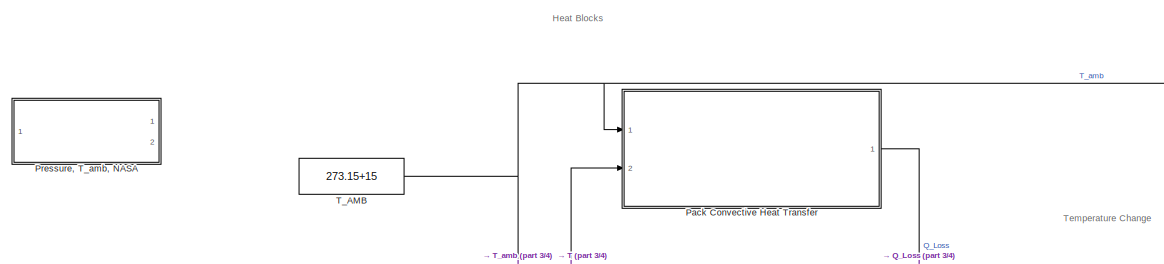
[diagram: root canvas - part 1/4, top center region]
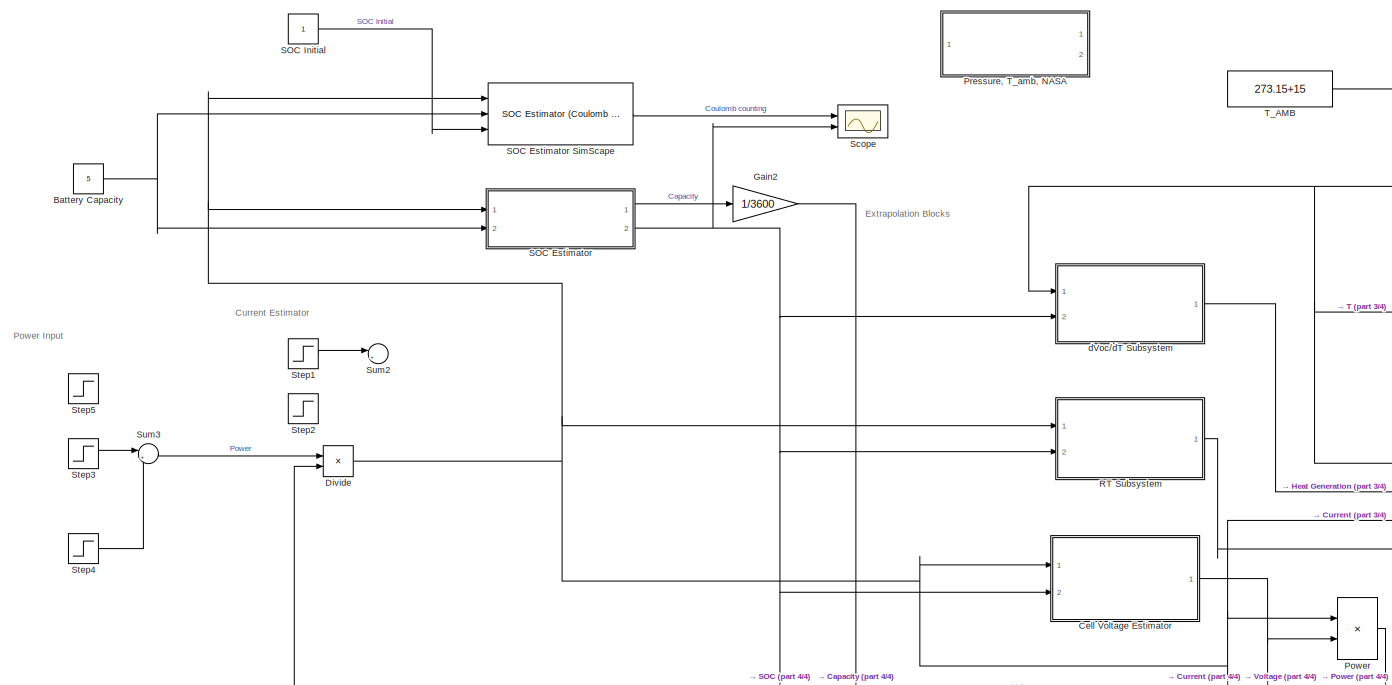
[diagram: root canvas - part 2/4, middle left region]
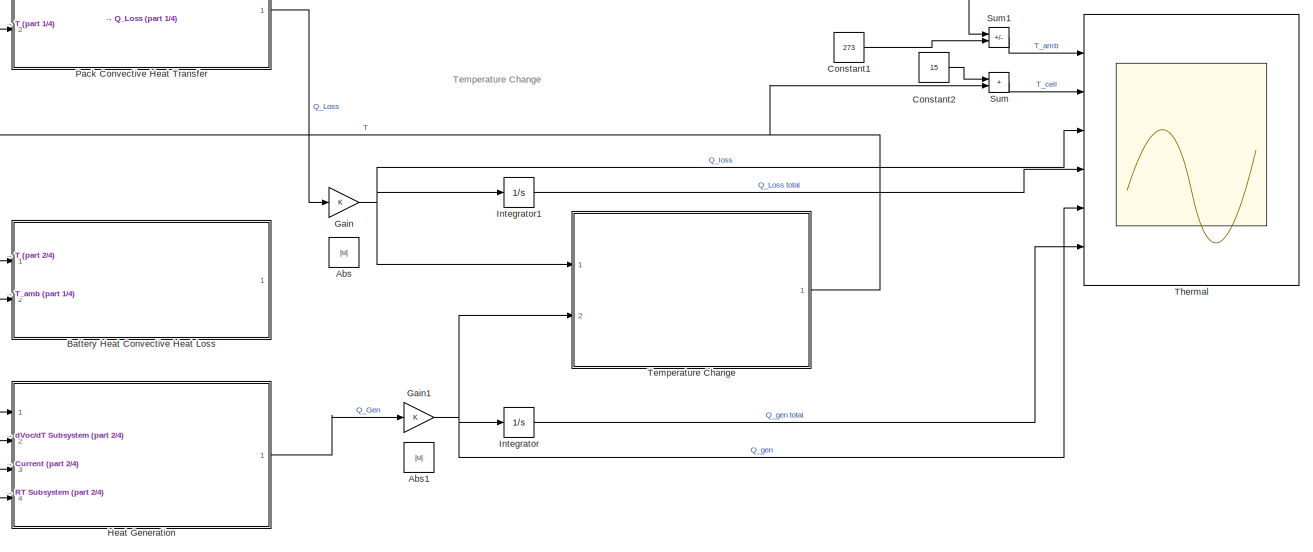
[diagram: root canvas - part 3/4, middle right region]
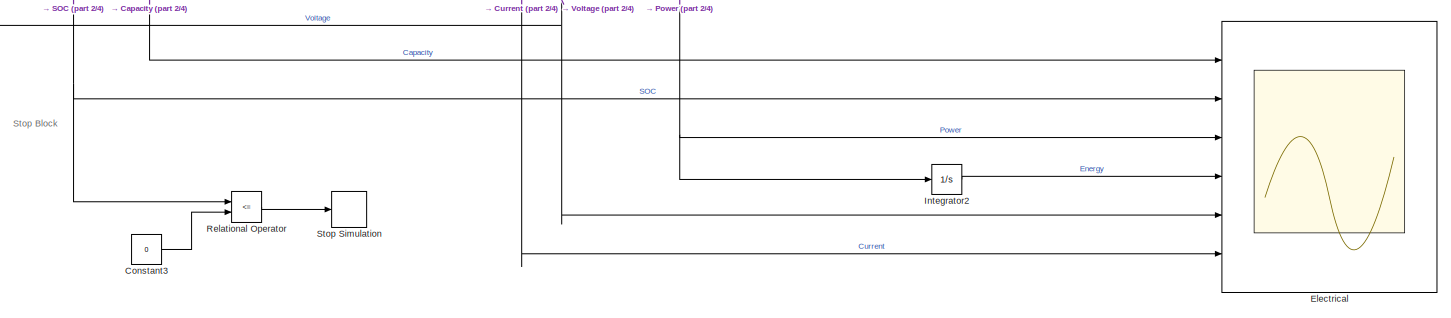
[diagram: root canvas - part 4/4, bottom center region]
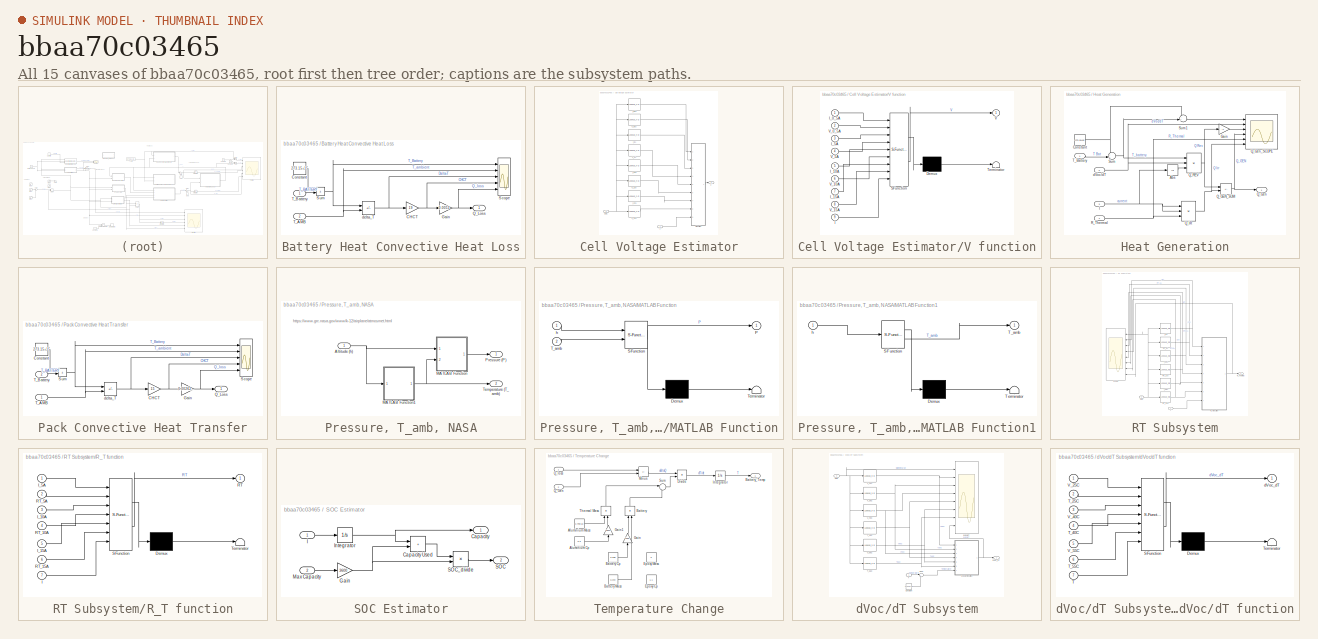
[diagram: thumbnail index - all 15 canvases of the model, root first then tree order]
MODEL slx_bbaa70c03465
KIND model
CONFIG AbsTol = auto
CONFIG EnableMultiTasking = off
CONFIG FixedStep = auto
CONFIG MaxStep = 0.03
CONFIG MinStep = auto
CONFIG RelTol = 1e-6
CONFIG SampleTimeConstraint = Unconstrained
CONFIG Solver = ode23t
CONFIG SolverName = ode23t
CONFIG StartTime = 0.0
CONFIG StopTime = 6*3600
WORKSPACE source: mxarray member
WORKSPACE CHGTime55C = [12335 12235.3030303 12110.6060606 11985.9090909 11861.2121212 11737.2727273 11626.8181818 11502.1212121 11377.4242424 11252.7272727 11128.030303 11003.3333333 ... (100 elements, 100x1)]
WORKSPACE CHG_time25C = [14633.3333333 14511.9191919 14363.8383838 14215.7575758 14084.8484848 13949.5959596 13801.5151515 13653.4343434 13505.3535354 13357.2727273 13209.1919192 13061.1111111 ... (100 elements, 100x1)]
WORKSPACE CHG_time40C = [16740 16581.010101 16412.020202 16243.030303 16084.040404 15915.0505051 15746.0606061 15577.0707071 15408.0808081 15239.0909091 15070.1010101 14901.1111111 ... (100 elements, 100x1)]
WORKSPACE Capacity05A = [-5.0715 -5.02064646465 -4.96968686869 -4.91803030303 -4.86737373737 -4.81571717172 -4.76506060606 -4.7134040404 -4.6625 -4.61109090909 -4.55946969697 -4.50877777778 ... (100 elements, 100x1)]
WORKSPACE Capacity10A = [-4.9645 -4.91586363636 -4.86572727273 -4.81559090909 -4.76545454545 -4.71531818182 -4.66518181818 -4.61501515152 -4.5648030303 -4.51477272727 -4.46463636364 -4.4145 ... (100 elements, 100x1)]
WORKSPACE Capacity15A = [-4.9185 -4.87028282828 -4.82056565657 -4.77084848485 -4.72113131313 -4.67141414141 -4.6216969697 -4.57197979798 -4.52226262626 -4.47254545455 -4.42282828283 -4.37316666667 ... (100 elements, 100x1)]
WORKSPACE Capacity5A = [-4.989 -4.93917171717 -4.88857575758 -4.83801515152 -4.78815151515 -4.73743939394 -4.68672727273 -4.63701515152 -4.5863030303 -4.53559090909 -4.48566161616 -4.43516666667 ... (100 elements, 100x1)]
WORKSPACE Current05A = [0 0 0 0 0 0 0 0 0 0 0 0 ... (100 elements, 100x1)]
WORKSPACE Current10A = [-9.992 -9.9915 -9.9915 -9.9915 -9.9915 -9.9915 -9.9915 -9.9915 -9.9915 -9.9915 -9.9915 -9.9915 ... (100 elements, 100x1)]
WORKSPACE Current15A = [-14.99 -14.99 -14.99 -14.99 -14.99 -14.99 -14.99 -14.99 -14.99 -14.99 -14.99 -14.99 ... (100 elements, 100x1)]
WORKSPACE Current5A = [-4.9895 -4.99 -4.99 -4.99 -4.99 -4.99 -4.99 -4.99 -4.99 -4.99 -4.99 -4.99 ... (100 elements, 100x1)]
WORKSPACE DCHGCapacity55C = [-5.144 -5.09218686869 -5.04086363636 -4.98854545455 -4.93674747475 -4.88490909091 -4.83296969697 -4.78077272727 -4.72895454545 -4.67713636364 -4.62481818182 -4.57344444444 ... (100 elements, 100x1)]
WORKSPACE DCHGVoltage55C = [2.4995 2.64063636364 2.74113636364 2.81595454545 2.87527272727 2.92509090909 2.96940909091 3.00919191919 3.04500505051 3.07654545455 3.10455050505 3.1305 ... (100 elements, 100x1)]
WORKSPACE DCHG_capacity25C = [-5.128 -5.07663299663 -5.02509090909 -4.9733030303 -4.92151515152 -4.86972727273 -4.81780808081 -4.76607407407 -4.71405723906 -4.66254545455 -4.61078787879 -4.5587037037 ... (100 elements, 100x1)]
WORKSPACE DCHG_capacity40C = [-5.12166666667 -5.06995959596 -5.01858585859 -4.96687878788 -4.91483838384 -4.86309427609 -4.81175757576 -4.75971717172 -4.70812457912 -4.65663636364 -4.6045959596 -4.55281481481 ... (100 elements, 100x1)]
WORKSPACE DCHG_voltage25C = [2.5 2.64115824916 2.73824242424 2.81103030303 2.86915151515 2.91918518519 2.96385858586 3.00459259259 3.04133333333 3.07375757576 3.10317845118 3.13 ... (100 elements, 100x1)]
WORKSPACE DCHG_voltage40C = [2.5 2.64113804714 2.74026599327 2.81378787879 2.8727037037 2.92262962963 2.96757575758 3.00806734007 3.04432323232 3.07633333333 3.10490572391 3.1317037037 ... (100 elements, 100x1)]
WORKSPACE Param: Simulink.Parameter (value not decoded)
WORKSPACE RT05A = [0 0 0 0 0 0 0 0 0 0 0 0 ... (100 elements, 100x1)]
WORKSPACE RT10A = [0.000100080064051 0.00676736842478 0.0104184516435 0.0126167848732 0.0140700403424 0.015453539549 0.0166596152184 0.0175790836352 0.0182392407284 0.0185930768426 0.0188089168723 0.0189049581033 ... (100 elements, 100x1)]
WORKSPACE RT15A = [0 0.00554342625724 0.00881159830459 0.0109001960903 0.0124254553541 0.0137751767171 0.0148543473427 0.0157162013733 0.0163081785163 0.0167626902784 0.0170746827852 0.0171670002224 ... (100 elements, 100x1)]
WORKSPACE RT5A = [0.000100210441928 0.00482986174369 0.00833586364648 0.0106880427522 0.0123874010648 0.0139723892229 0.0155006983664 0.0166929819234 0.0176008582822 0.0181362725451 0.0185441590251 0.0187820084614 ... (100 elements, 100x1)]
WORKSPACE SOC05A = [0 0.0100273164455 0.0200755459555 0.0302612041742 0.0402496820716 0.0504353402904 0.0604238181878 0.0706094764066 0.0806467514542 0.0907836125227 0.10096229972 0.110957748639 ... (100 elements, 100x1)]
WORKSPACE SOC10A = [0 0.00979683022185 0.0198958056748 0.0299947811278 0.0400937565808 0.0501927320338 0.0602917074868 0.0703967868838 0.080511022197 0.0905886338458 0.100687609299 0.110786584752 ... (100 elements, 100x1)]
WORKSPACE SOC15A = [0 0.0098032269426 0.0199114249129 0.0300196228833 0.0401278208537 0.050236018824 0.0603442167944 0.0704524147647 0.0805606127351 0.0906688107054 0.100777008676 0.110873911423 ... (100 elements, 100x1)]
WORKSPACE SOC25C = [0 0.0100169663352 0.0200680754503 0.0301671157755 0.0402661561008 0.050365196426 0.0604898438362 0.0705783786907 0.0807220672665 0.0907672670543 0.100860398052 0.111017218467 ... (100 elements, 100x1)]
WORKSPACE SOC40C = [0 0.0100957508702 0.0201264187597 0.0302221696299 0.040383003481 0.0504859857935 0.0605094222406 0.0706702560917 0.0807436552311 0.0907966748513 0.100957508702 0.111067722457 ... (100 elements, 100x1)]
WORKSPACE SOC55C = [0 0.0100725371915 0.0200498374099 0.0302205570479 0.040290148766 0.0503675950799 0.060464677883 0.0706118337339 0.0806853527499 0.0907588717659 0.100929591404 0.110916709867 ... (100 elements, 100x1)]
WORKSPACE SOC5A = [0 0.00998762935023 0.0201291325765 0.0302635495059 0.040258265153 0.0504230519264 0.0605878386997 0.0705521845029 0.0807169712762 0.0908817580495 0.100889633962 0.111010890626 ... (100 elements, 100x1)]
WORKSPACE Voltage05A = [2.5 2.64131313131 2.73952020202 2.81396969697 2.87462626263 2.92878282828 2.97631818182 3.0185959596 3.05482828283 3.0865 3.11503535354 3.14022222222 ... (100 elements, 100x1)]
WORKSPACE Voltage10A = [2.499 2.5736969697 2.63542424242 2.68790909091 2.73404545455 2.77437878788 2.80986363636 2.84295454545 2.87259090909 2.90072727273 2.92710606061 2.95133333333 ... (100 elements, 100x1)]
WORKSPACE Voltage15A = [2.5 2.55821717172 2.60743434343 2.65057575758 2.68836868687 2.72229292929 2.75365151515 2.78301010101 2.81036868687 2.83522727273 2.85908585859 2.88288888889 ... (100 elements, 100x1)]
WORKSPACE Voltage5A = [2.4995 2.61721212121 2.69792424242 2.76063636364 2.81281313131 2.85906060606 2.89896969697 2.9352979798 2.967 2.996 3.0225 3.0465 ... (100 elements, 100x1)]
WORKSPACE temp25C = [302.063611111 302.097992144 302.124801908 302.108875421 302.09875982 302.038860831 301.993885522 302.043447811 301.958380471 302.027050505 302.022184063 301.955135802 ... (100 elements, 100x1)]
WORKSPACE temp40C = [311.240833333 312.174193603 312.448372054 312.47840404 312.481924242 312.475368687 312.536590909 312.636055556 312.60019697 312.601717172 312.619693603 312.584314815 ... (100 elements, 100x1)]
WORKSPACE temp55C = [327.716599383 327.643714956 327.735823245 327.782294302 327.755474781 327.740584002 327.757436513 327.776213951 327.720010617 327.727628249 327.697848259 327.730854322 ... (100 elements, 100x1)]
BLOCK [Abs] Abs
  SaturateOnIntegerOverflow = off
BLOCK [Abs] Abs1
  SaturateOnIntegerOverflow = off
BLOCK [Constant] Battery Capacity
  Value = 5
  VectorParams1D = off
BLOCK [SubSystem] Battery Heat Convective Heat Loss
  Commented = on
  Ports = [2, 1]
BLOCK [Gain] Battery Heat Convective Heat Loss/CHCT
  Gain = 19
BLOCK [Constant] Battery Heat Convective Heat Loss/Constant
  Value = 273.15+15
BLOCK [Gain] Battery Heat Convective Heat Loss/Gain
  Gain = 0.0053
BLOCK [Outport] Battery Heat Convective Heat Loss/Q_Loss
BLOCK [Scope] Battery Heat Convective Heat Loss/Scope
  Floating = off
  NumInputPorts = 5
  Ports = [5]
  ScopeSpecificationString = Simulink.scopes.TimeScopeBlockCfg('CurrentConfiguration', extmgr.ConfigurationSet(extmgr.Configuration('Core','General UI',true),extmgr.Configuration('Core','Source UI',true),extmgr.Configuration('Sources','WiredSimulink',true,'DataLoggingVariableName','ScopeData2'),extmgr.Configuration('Visuals','Time Domain',true,'SerializedDisplays',{struct('MinYLimReal','296.18737','MaxYLimReal','315.8137','YL...<+7204ch>
BLOCK [Sum] Battery Heat Convective Heat Loss/Sum
  IconShape = rectangular
  Inputs = +|+
  Ports = [2, 1]
BLOCK [Inport] Battery Heat Convective Heat Loss/T_AMB
  Port = 2
BLOCK [Inport] Battery Heat Convective Heat Loss/T_Battery
BLOCK [Sum] Battery Heat Convective Heat Loss/delta_T
  IconShape = rectangular
  Inputs = +|-
  Ports = [2, 1]
BLOCK [SubSystem] Cell Voltage Estimator
  Ports = [2, 1]
BLOCK [Inport] Cell Voltage Estimator/I
BLOCK [Lookup_n-D] Cell Voltage Estimator/I_05A
  BreakpointsForDimension1 = SOC05A
  InternalRulePriority = Speed
  NumberOfTableDimensions = 1
  Ports = [1, 1]
  RndMeth = Simplest
  Table = Current05A
BLOCK [Lookup_n-D] Cell Voltage Estimator/I_10A
  BreakpointsForDimension1 = SOC10A
  InternalRulePriority = Speed
  NumberOfTableDimensions = 1
  Ports = [1, 1]
  RndMeth = Simplest
  Table = Current10A
BLOCK [Lookup_n-D] Cell Voltage Estimator/I_15A
  BreakpointsForDimension1 = SOC15A
  InternalRulePriority = Speed
  NumberOfTableDimensions = 1
  Ports = [1, 1]
  RndMeth = Simplest
  Table = Current15A
BLOCK [Lookup_n-D] Cell Voltage Estimator/I_5A
  BreakpointsForDimension1 = SOC5A
  InternalRulePriority = Speed
  NumberOfTableDimensions = 1
  Ports = [1, 1]
  RndMeth = Simplest
  Table = Current5A
BLOCK [Inport] Cell Voltage Estimator/SOC
  Port = 2
BLOCK [Outport] Cell Voltage Estimator/V
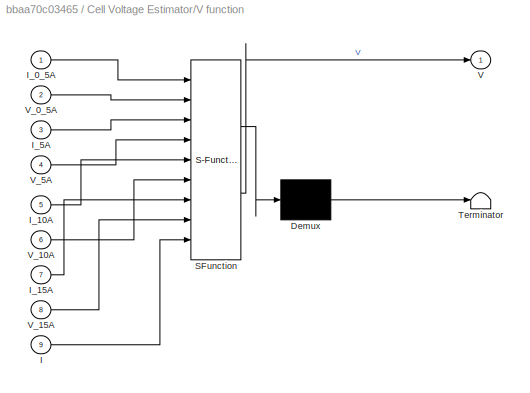
BLOCK [SubSystem] Cell Voltage Estimator/V function
  ErrorFcn = Stateflow.Translate.translate
  PermitHierarchicalResolution = ExplicitOnly
  Ports = [9, 1]
  SFBlockType = MATLAB Function
  TreatAsAtomicUnit = on
BLOCK [Demux] Cell Voltage Estimator/V function/ Demux 
  Outputs = 1
  Ports = [1, 1]
BLOCK [S-Function] Cell Voltage Estimator/V function/ SFunction 
  EnableBusSupport = on
  FunctionName = sf_sfun
  PortCounts = [9 2]
  Ports = [9, 2]
  SFcnIsStateOwnerBlock = off
  SFunctionDeploymentMode = off
  Tag = Stateflow S-Function 3
BLOCK [Terminator] Cell Voltage Estimator/V function/ Terminator 
BLOCK [Inport] Cell Voltage Estimator/V function/I
  Port = 9
BLOCK [Inport] Cell Voltage Estimator/V function/I_0_5A
BLOCK [Inport] Cell Voltage Estimator/V function/I_10A
  Port = 5
BLOCK [Inport] Cell Voltage Estimator/V function/I_15A
  Port = 7
BLOCK [Inport] Cell Voltage Estimator/V function/I_5A
  Port = 3
BLOCK [Outport] Cell Voltage Estimator/V function/V
BLOCK [Inport] Cell Voltage Estimator/V function/V_0_5A
  Port = 2
BLOCK [Inport] Cell Voltage Estimator/V function/V_10A
  Port = 6
BLOCK [Inport] Cell Voltage Estimator/V function/V_15A
  Port = 8
BLOCK [Inport] Cell Voltage Estimator/V function/V_5A
  Port = 4
BLOCK [Lookup_n-D] Cell Voltage Estimator/V_05A
  BreakpointsForDimension1 = SOC05A
  InternalRulePriority = Speed
  NumberOfTableDimensions = 1
  Ports = [1, 1]
  RndMeth = Simplest
  Table = Voltage05A
BLOCK [Lookup_n-D] Cell Voltage Estimator/V_10A
  BreakpointsForDimension1 = SOC10A
  InternalRulePriority = Speed
  NumberOfTableDimensions = 1
  Ports = [1, 1]
  RndMeth = Simplest
  Table = Voltage10A
BLOCK [Lookup_n-D] Cell Voltage Estimator/V_15A
  BreakpointsForDimension1 = SOC15A
  InternalRulePriority = Speed
  NumberOfTableDimensions = 1
  Ports = [1, 1]
  RndMeth = Simplest
  Table = Voltage15A
BLOCK [Lookup_n-D] Cell Voltage Estimator/V_5A
  BreakpointsForDimension1 = SOC5A
  InternalRulePriority = Speed
  NumberOfTableDimensions = 1
  Ports = [1, 1]
  RndMeth = Simplest
  Table = Voltage5A
BLOCK [Constant] Constant1
  Value = 273
BLOCK [Constant] Constant2
  Value = 15
BLOCK [Constant] Constant3
  Value = 0
BLOCK [Product] Divide
  Inputs = */
  Ports = [2, 1]
BLOCK [Scope] Electrical
  Floating = off
  NumInputPorts = 6
  Ports = [6]
  ScopeSpecificationString = Simulink.scopes.TimeScopeBlockCfg('CurrentConfiguration', extmgr.ConfigurationSet(extmgr.Configuration('Core','General UI',true),extmgr.Configuration('Core','Source UI',true),extmgr.Configuration('Sources','WiredSimulink',true),extmgr.Configuration('Visuals','Time Domain',true,'SerializedDisplays',{struct('MinYLimReal','-5.62221','MaxYLimReal','0.62469','YLabelReal','','MinYLimMag','0.00000','MaxY...<+5263ch>
BLOCK [Gain] Gain
BLOCK [Gain] Gain1
BLOCK [Gain] Gain2
  Gain = 1/3600
BLOCK [SubSystem] Heat Generation
  Ports = [4, 1]
BLOCK [Abs] Heat Generation/Abs
  SaturateOnIntegerOverflow = off
BLOCK [Constant] Heat Generation/Constant
  Value = 273.15+15
BLOCK [Gain] Heat Generation/Gain
  Gain = -1
BLOCK [Inport] Heat Generation/I
  Port = 3
BLOCK [Sum] Heat Generation/Q_GEN_SUM
  IconShape = rectangular
  Inputs = -+
  Ports = [2, 1]
BLOCK [Outport] Heat Generation/Q_Gen
BLOCK [Scope] Heat Generation/Q_Gen_SCOPE
  Floating = off
  NumInputPorts = 6
  Ports = [6]
  ScopeSpecificationString = Simulink.scopes.TimeScopeBlockCfg('CurrentConfiguration', extmgr.ConfigurationSet(extmgr.Configuration('Core','General UI',true),extmgr.Configuration('Core','Source UI',true),extmgr.Configuration('Sources','WiredSimulink',true,'DataLoggingVariableName','ScopeData2'),extmgr.Configuration('Visuals','Time Domain',true,'SerializedDisplays',{struct('MinYLimReal','-3.62274','MaxYLimReal','32.60469','YLa...<+5725ch>
BLOCK [Product] Heat Generation/Q_IR
  Inputs = 3
  Ports = [3, 1]
BLOCK [Product] Heat Generation/Q_REV
  Inputs = 3
  Ports = [3, 1]
BLOCK [Inport] Heat Generation/R_Thermal
  Port = 4
BLOCK [Sum] Heat Generation/Sum
  Inputs = ++|
  Ports = [2, 1]
BLOCK [Sum] Heat Generation/Sum1
  Inputs = -+|
  Ports = [2, 1]
BLOCK [Inport] Heat Generation/T_Battery
BLOCK [Inport] Heat Generation/dVoc//dT
  Port = 2
BLOCK [Integrator] Integrator
  Ports = [1, 1]
BLOCK [Integrator] Integrator1
  Ports = [1, 1]
BLOCK [Integrator] Integrator2
  Ports = [1, 1]
BLOCK [SubSystem] Pack Convective Heat Transfer
  Ports = [2, 1]
BLOCK [Gain] Pack Convective Heat Transfer/CHCT
  Gain = 15
BLOCK [Constant] Pack Convective Heat Transfer/Constant
  Value = 273.15+15
BLOCK [Gain] Pack Convective Heat Transfer/Gain
  Gain = 0.00262/10
BLOCK [Outport] Pack Convective Heat Transfer/Q_Loss
BLOCK [Scope] Pack Convective Heat Transfer/Scope
  Floating = off
  NumInputPorts = 5
  Ports = [5]
  ScopeSpecificationString = Simulink.scopes.TimeScopeBlockCfg('CurrentConfiguration', extmgr.ConfigurationSet(extmgr.Configuration('Core','General UI',true),extmgr.Configuration('Core','Source UI',true),extmgr.Configuration('Sources','WiredSimulink',true,'DataLoggingVariableName','ScopeData2'),extmgr.Configuration('Visuals','Time Domain',true,'SerializedDisplays',{struct('MinYLimReal','296.18737','MaxYLimReal','315.8137','YL...<+7204ch>
BLOCK [Sum] Pack Convective Heat Transfer/Sum
  IconShape = rectangular
  Inputs = +|+
  Ports = [2, 1]
BLOCK [Inport] Pack Convective Heat Transfer/T_AMB
BLOCK [Inport] Pack Convective Heat Transfer/T_Battery
  Port = 2
BLOCK [Sum] Pack Convective Heat Transfer/delta_T
  IconShape = rectangular
  Inputs = +|-
  Ports = [2, 1]
BLOCK [Product] Power
  Ports = [2, 1]
BLOCK [SubSystem] Pressure, T_amb, NASA
  Commented = on
  Ports = [1, 2]
BLOCK [Inport] Pressure, T_amb, NASA/Altitude (h)
BLOCK [SubSystem] Pressure, T_amb, NASA/MATLAB Function
  ErrorFcn = Stateflow.Translate.translate
  PermitHierarchicalResolution = ExplicitOnly
  Ports = [2, 1]
  SFBlockType = MATLAB Function
  TreatAsAtomicUnit = on
BLOCK [Demux] Pressure, T_amb, NASA/MATLAB Function/ Demux 
  Outputs = 1
  Ports = [1, 1]
BLOCK [S-Function] Pressure, T_amb, NASA/MATLAB Function/ SFunction 
  EnableBusSupport = on
  FunctionName = sf_sfun
  PortCounts = [2 2]
  Ports = [2, 2]
  SFcnIsStateOwnerBlock = off
  SFunctionDeploymentMode = off
  Tag = Stateflow S-Function 4
BLOCK [Terminator] Pressure, T_amb, NASA/MATLAB Function/ Terminator 
BLOCK [Outport] Pressure, T_amb, NASA/MATLAB Function/P
BLOCK [Inport] Pressure, T_amb, NASA/MATLAB Function/T_amb
  Port = 2
BLOCK [Inport] Pressure, T_amb, NASA/MATLAB Function/h
BLOCK [SubSystem] Pressure, T_amb, NASA/MATLAB Function1
  ErrorFcn = Stateflow.Translate.translate
  PermitHierarchicalResolution = ExplicitOnly
  Ports = [1, 1]
  SFBlockType = MATLAB Function
  TreatAsAtomicUnit = on
BLOCK [Demux] Pressure, T_amb, NASA/MATLAB Function1/ Demux 
  Outputs = 1
  Ports = [1, 1]
BLOCK [S-Function] Pressure, T_amb, NASA/MATLAB Function1/ SFunction 
  EnableBusSupport = on
  FunctionName = sf_sfun
  PortCounts = [1 2]
  Ports = [1, 2]
  SFcnIsStateOwnerBlock = off
  SFunctionDeploymentMode = off
  Tag = Stateflow S-Function 5
BLOCK [Terminator] Pressure, T_amb, NASA/MATLAB Function1/ Terminator 
BLOCK [Outport] Pressure, T_amb, NASA/MATLAB Function1/T_amb
BLOCK [Inport] Pressure, T_amb, NASA/MATLAB Function1/h
BLOCK [Outport] Pressure, T_amb, NASA/Pressure (P)
BLOCK [Outport] Pressure, T_amb, NASA/Temperature (T_amb)
  Port = 2
BLOCK [SubSystem] RT Subsystem
  Ports = [2, 1]
BLOCK [Inport] RT Subsystem/I
BLOCK [Lookup_n-D] RT Subsystem/I_10A
  BreakpointsForDimension1 = SOC10A
  InternalRulePriority = Speed
  NumberOfTableDimensions = 1
  Ports = [1, 1]
  RndMeth = Simplest
  Table = Current10A
BLOCK [Lookup_n-D] RT Subsystem/I_15A
  BreakpointsForDimension1 = SOC15A
  InternalRulePriority = Speed
  NumberOfTableDimensions = 1
  Ports = [1, 1]
  RndMeth = Simplest
  Table = Current15A
BLOCK [Lookup_n-D] RT Subsystem/I_5A
  BreakpointsForDimension1 = SOC5A
  InternalRulePriority = Speed
  NumberOfTableDimensions = 1
  Ports = [1, 1]
  RndMeth = Simplest
  Table = Current5A
BLOCK [Lookup_n-D] RT Subsystem/RT_10A
  BreakpointsForDimension1 = SOC10A
  InternalRulePriority = Speed
  NumberOfTableDimensions = 1
  Ports = [1, 1]
  RndMeth = Simplest
  Table = RT10A
BLOCK [Lookup_n-D] RT Subsystem/RT_15A
  BreakpointsForDimension1 = SOC15A
  InternalRulePriority = Speed
  NumberOfTableDimensions = 1
  Ports = [1, 1]
  RndMeth = Simplest
  Table = RT15A
BLOCK [Lookup_n-D] RT Subsystem/RT_5A
  BreakpointsForDimension1 = SOC5A
  InternalRulePriority = Speed
  NumberOfTableDimensions = 1
  Ports = [1, 1]
  RndMeth = Simplest
  Table = RT5A
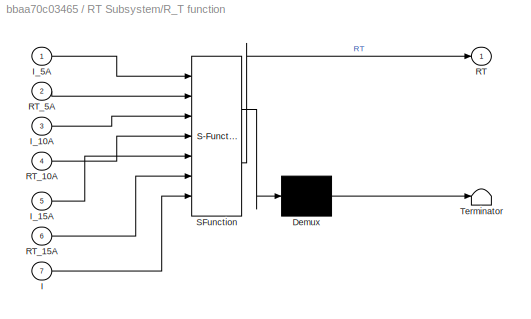
BLOCK [SubSystem] RT Subsystem/R_T function
  ErrorFcn = Stateflow.Translate.translate
  PermitHierarchicalResolution = ExplicitOnly
  Ports = [7, 1]
  SFBlockType = MATLAB Function
  TreatAsAtomicUnit = on
BLOCK [Demux] RT Subsystem/R_T function/ Demux 
  Outputs = 1
  Ports = [1, 1]
BLOCK [S-Function] RT Subsystem/R_T function/ SFunction 
  EnableBusSupport = on
  FunctionName = sf_sfun
  PortCounts = [7 2]
  Ports = [7, 2]
  SFcnIsStateOwnerBlock = off
  SFunctionDeploymentMode = off
  Tag = Stateflow S-Function 1
BLOCK [Terminator] RT Subsystem/R_T function/ Terminator 
BLOCK [Inport] RT Subsystem/R_T function/I
  Port = 7
BLOCK [Inport] RT Subsystem/R_T function/I_10A
  Port = 3
BLOCK [Inport] RT Subsystem/R_T function/I_15A
  Port = 5
BLOCK [Inport] RT Subsystem/R_T function/I_5A
BLOCK [Outport] RT Subsystem/R_T function/RT
BLOCK [Inport] RT Subsystem/R_T function/RT_10A
  Port = 4
BLOCK [Inport] RT Subsystem/R_T function/RT_15A
  Port = 6
BLOCK [Inport] RT Subsystem/R_T function/RT_5A
  Port = 2
BLOCK [Outport] RT Subsystem/R_Thermal
BLOCK [Inport] RT Subsystem/SOC
  Port = 2
BLOCK [Scope] RT Subsystem/Scope
  Floating = off
  NameLocation = top
  NumInputPorts = 8
  Ports = [8]
  ScopeSpecificationString = Simulink.scopes.TimeScopeBlockCfg('CurrentConfiguration', extmgr.ConfigurationSet(extmgr.Configuration('Core','General UI',true),extmgr.Configuration('Core','Source UI',true),extmgr.Configuration('Sources','WiredSimulink',true,'DataLoggingVariableName','ScopeData3'),extmgr.Configuration('Visuals','Time Domain',true,'SerializedDisplays',{struct('MinYLimReal','-0.125','MaxYLimReal','1.125','YLabelRe...<+7212ch>
BLOCK [RelationalOperator] Relational Operator
  InputSameDT = off
  Operator = <=
  OutDataTypeStr = boolean
  Ports = [2, 1]
  RndMeth = Simplest
BLOCK [SubSystem] SOC Estimator
  Ports = [2, 2]
BLOCK [Reference] SOC Estimator SimScape  REF=BatteryEstimators/SOC Estimator
(Coulomb Counting, Variable Capacity)
  Ports = [3, 1]
  SourceBlock = BatteryEstimators/SOC Estimator\n(Coulomb Counting, Variable Capacity)
  SourceType = SOC Estimator (Coulomb Counting, Variable Capacity)
BLOCK [Outport] SOC Estimator/Capacity
BLOCK [Sum] SOC Estimator/Capacity Used
  IconShape = rectangular
  Ports = [2, 1]
BLOCK [Gain] SOC Estimator/Gain
  Gain = 3600
BLOCK [Inport] SOC Estimator/I
BLOCK [Integrator] SOC Estimator/Integrator
  Ports = [1, 1]
BLOCK [Inport] SOC Estimator/Max Capacity
  Port = 2
BLOCK [Outport] SOC Estimator/SOC
  Port = 2
BLOCK [Product] SOC Estimator/SOC_divide
  Inputs = */
  Ports = [2, 1]
BLOCK [Constant] SOC Initial
BLOCK [Scope] Scope
  Floating = off
  NumInputPorts = 2
  Ports = [2]
  ScopeSpecificationString = Simulink.scopes.TimeScopeBlockCfg('CurrentConfiguration', extmgr.ConfigurationSet(extmgr.Configuration('Core','General UI',true),extmgr.Configuration('Core','Source UI',true),extmgr.Configuration('Sources','WiredSimulink',true,'DataLoggingVariableName','ScopeData1'),extmgr.Configuration('Visuals','Time Domain',true,'SerializedDisplays',{struct('MinYLimReal','-0.12489','MaxYLimReal','1.12499','YLab...<+2146ch>
BLOCK [Step] Step1
  After = -15
  SampleTime = 0
  Time = 2
BLOCK [Step] Step2
  After = +25-1
  SampleTime = 0
  Time = 180
BLOCK [Step] Step3
  After = -85
  SampleTime = 0
BLOCK [Step] Step4
  After = +85-2.5
  SampleTime = 0
  Time = 180
BLOCK [Step] Step5
  After = -55
  SampleTime = 0
BLOCK [Stop] Stop Simulation
BLOCK [Sum] Sum
  IconShape = rectangular
  Inputs = +|+
  Ports = [2, 1]
BLOCK [Sum] Sum1
  IconShape = rectangular
  Inputs = +|-
  Ports = [2, 1]
BLOCK [Sum] Sum2
  Inputs = |++
  Ports = [2, 1]
BLOCK [Sum] Sum3
  Inputs = |++
  Ports = [2, 1]
BLOCK [Constant] T_AMB 
  Value = 273.15+15
  VectorParams1D = off
BLOCK [SubSystem] Temperature Change
  Ports = [2, 1]
BLOCK [Constant] Temperature Change/Aluminium Cp
  Value = 0.9
  VectorParams1D = off
BLOCK [Constant] Temperature Change/Aluminium Mass
  Value = 0.799/10
  VectorParams1D = off
BLOCK [Product] Temperature Change/Battery
  NameLocation = top
  OutDataTypeStr = double
  Ports = [2, 1]
BLOCK [Constant] Temperature Change/Battery Cp
  Value = 0.948
  VectorParams1D = off
BLOCK [Constant] Temperature Change/Battery Mass
  Value = 0.072
  VectorParams1D = off
BLOCK [Outport] Temperature Change/Battery_Temp
BLOCK [Product] Temperature Change/Divide
  Inputs = */
  Ports = [2, 1]
BLOCK [Constant] Temperature Change/Epoxy Cp
  Value = 1.1
  VectorParams1D = off
BLOCK [Constant] Temperature Change/Epoxy Mass
  Value = 0
  VectorParams1D = off
BLOCK [Gain] Temperature Change/Gain
  Gain = 1000
  NameLocation = right
BLOCK [Gain] Temperature Change/Gain1
  Gain = 1000
  NameLocation = right
BLOCK [Integrator] Temperature Change/Integrator
  Ports = [1, 1]
BLOCK [Sum] Temperature Change/Minus
  IconShape = rectangular
  Inputs = -+
  Ports = [2, 1]
BLOCK [Inport] Temperature Change/Q_Gen
  Port = 2
BLOCK [Inport] Temperature Change/Q_loss
BLOCK [Sum] Temperature Change/Sum
  Inputs = |++
  Ports = [2, 1]
BLOCK [Product] Temperature Change/Thermal Mass
  NameLocation = top
  OutDataTypeStr = double
  Ports = [2, 1]
BLOCK [Scope] Thermal
  Floating = off
  NumInputPorts = 6
  Ports = [6]
  ScopeSpecificationString = Simulink.scopes.TimeScopeBlockCfg('CurrentConfiguration', extmgr.ConfigurationSet(extmgr.Configuration('Core','General UI',true),extmgr.Configuration('Core','Source UI',true),extmgr.Configuration('Sources','WiredSimulink',true,'DataLoggingVariableName','ScopeData1'),extmgr.Configuration('Visuals','Time Domain',true,'SerializedDisplays',{struct('MinYLimReal','5.15','MaxYLimReal','25.15','YLabelReal...<+5366ch>
BLOCK [SubSystem] dVoc//dT Subsystem
  Ports = [2, 1]
BLOCK [Constant] dVoc//dT Subsystem/Constant
  Value = 273.15+15
BLOCK [Inport] dVoc//dT Subsystem/SOC
  Port = 2
BLOCK [Sum] dVoc//dT Subsystem/Sum
  Inputs = |++
  Ports = [2, 1]
BLOCK [Inport] dVoc//dT Subsystem/T
BLOCK [Lookup_n-D] dVoc//dT Subsystem/T_25C
  BreakpointsForDimension1 = SOC25C
  InternalRulePriority = Speed
  NumberOfTableDimensions = 1
  Ports = [1, 1]
  RndMeth = Simplest
  Table = temp25C
BLOCK [Lookup_n-D] dVoc//dT Subsystem/T_40C
  BreakpointsForDimension1 = SOC40C
  InternalRulePriority = Speed
  NumberOfTableDimensions = 1
  Ports = [1, 1]
  RndMeth = Simplest
  Table = temp40C
BLOCK [Lookup_n-D] dVoc//dT Subsystem/T_55C
  BreakpointsForDimension1 = SOC55C
  InternalRulePriority = Speed
  NumberOfTableDimensions = 1
  Ports = [1, 1]
  RndMeth = Simplest
  Table = temp55C
BLOCK [Lookup_n-D] dVoc//dT Subsystem/V_25C
  BreakpointsForDimension1 = SOC25C
  InternalRulePriority = Speed
  NumberOfTableDimensions = 1
  Ports = [1, 1]
  RndMeth = Simplest
  Table = DCHG_voltage25C
BLOCK [Lookup_n-D] dVoc//dT Subsystem/V_40C
  BreakpointsForDimension1 = SOC40C
  InternalRulePriority = Speed
  NumberOfTableDimensions = 1
  Ports = [1, 1]
  RndMeth = Simplest
  Table = DCHG_voltage40C
BLOCK [Lookup_n-D] dVoc//dT Subsystem/V_55C
  BreakpointsForDimension1 = SOC55C
  InternalRulePriority = Speed
  NumberOfTableDimensions = 1
  Ports = [1, 1]
  RndMeth = Simplest
  Table = DCHGVoltage55C
BLOCK [Scope] dVoc//dT Subsystem/dVoc//dT
  Floating = off
  NumInputPorts = 8
  Ports = [8]
  ScopeSpecificationString = Simulink.scopes.TimeScopeBlockCfg('CurrentConfiguration', extmgr.ConfigurationSet(extmgr.Configuration('Core','General UI',true),extmgr.Configuration('Core','Source UI',true),extmgr.Configuration('Sources','WiredSimulink',true,'DataLoggingVariableName','ScopeData1'),extmgr.Configuration('Visuals','Time Domain',true,'SerializedDisplays',{struct('MinYLimReal','-0.12491','MaxYLimReal','1.12499','YLab...<+6949ch>
BLOCK [SubSystem] dVoc//dT Subsystem/dVoc//dT function
  ErrorFcn = Stateflow.Translate.translate
  PermitHierarchicalResolution = ExplicitOnly
  Ports = [7, 1]
  SFBlockType = MATLAB Function
  TreatAsAtomicUnit = on
BLOCK [Demux] dVoc//dT Subsystem/dVoc//dT function/ Demux 
  Outputs = 1
  Ports = [1, 1]
BLOCK [S-Function] dVoc//dT Subsystem/dVoc//dT function/ SFunction 
  EnableBusSupport = on
  FunctionName = sf_sfun
  PortCounts = [7 2]
  Ports = [7, 2]
  SFcnIsStateOwnerBlock = off
  SFunctionDeploymentMode = off
  Tag = Stateflow S-Function 2
BLOCK [Terminator] dVoc//dT Subsystem/dVoc//dT function/ Terminator 
BLOCK [Inport] dVoc//dT Subsystem/dVoc//dT function/T
  Port = 7
BLOCK [Inport] dVoc//dT Subsystem/dVoc//dT function/T_25C
  Port = 2
BLOCK [Inport] dVoc//dT Subsystem/dVoc//dT function/T_40C
  Port = 4
BLOCK [Inport] dVoc//dT Subsystem/dVoc//dT function/T_55C
  Port = 6
BLOCK [Inport] dVoc//dT Subsystem/dVoc//dT function/V_25C
BLOCK [Inport] dVoc//dT Subsystem/dVoc//dT function/V_40C
  Port = 3
BLOCK [Inport] dVoc//dT Subsystem/dVoc//dT function/V_55C
  Port = 5
BLOCK [Outport] dVoc//dT Subsystem/dVoc//dT function/dVoc_dT
BLOCK [Outport] dVoc//dT Subsystem/dVoc_dT
ANNOTATION (root): Current Estimator
ANNOTATION (root): Extrapolation Blocks
ANNOTATION (root): Heat Blocks
ANNOTATION (root): Power Input
ANNOTATION (root): Stop Block
ANNOTATION (root): Temperature Change
ANNOTATION Pressure, T_amb, NASA: https://www.grc.nasa.gov/www/k-12/airplane/atmosmet.html
NET Battery Capacity:1 -> SOC Estimator SimScape:2, SOC Estimator:2
NET Battery Heat Convective Heat Loss/CHCT:1 -> Battery Heat Convective Heat Loss/Gain:1, Battery Heat Convective Heat Loss/Scope:4
LINE Battery Heat Convective Heat Loss/Constant:1 -> Battery Heat Convective Heat Loss/Sum:1
NET Battery Heat Convective Heat Loss/Gain:1 -> Battery Heat Convective Heat Loss/Q_Loss:1, Battery Heat Convective Heat Loss/Scope:5
NET Battery Heat Convective Heat Loss/Sum:1 -> Battery Heat Convective Heat Loss/Scope:1, Battery Heat Convective Heat Loss/delta_T:1
NET Battery Heat Convective Heat Loss/T_AMB:1 -> Battery Heat Convective Heat Loss/Scope:2, Battery Heat Convective Heat Loss/delta_T:2
LINE Battery Heat Convective Heat Loss/T_Battery:1 -> Battery Heat Convective Heat Loss/Sum:2
NET Battery Heat Convective Heat Loss/delta_T:1 -> Battery Heat Convective Heat Loss/CHCT:1, Battery Heat Convective Heat Loss/Scope:3
LINE Cell Voltage Estimator/I:1 -> Cell Voltage Estimator/V function:9
LINE Cell Voltage Estimator/I_05A:1 -> Cell Voltage Estimator/V function:1
LINE Cell Voltage Estimator/I_10A:1 -> Cell Voltage Estimator/V function:5
LINE Cell Voltage Estimator/I_15A:1 -> Cell Voltage Estimator/V function:7
LINE Cell Voltage Estimator/I_5A:1 -> Cell Voltage Estimator/V function:3
NET Cell Voltage Estimator/SOC:1 -> Cell Voltage Estimator/I_05A:1, Cell Voltage Estimator/I_10A:1, Cell Voltage Estimator/I_15A:1, Cell Voltage Estimator/I_5A:1, Cell Voltage Estimator/V_05A:1, Cell Voltage Estimator/V_10A:1, Cell Voltage Estimator/V_15A:1, Cell Voltage Estimator/V_5A:1
LINE Cell Voltage Estimator/V function:1 -> Cell Voltage Estimator/V:1
LINE Cell Voltage Estimator/V_05A:1 -> Cell Voltage Estimator/V function:2
LINE Cell Voltage Estimator/V_10A:1 -> Cell Voltage Estimator/V function:6
LINE Cell Voltage Estimator/V_15A:1 -> Cell Voltage Estimator/V function:8
LINE Cell Voltage Estimator/V_5A:1 -> Cell Voltage Estimator/V function:4
NET Cell Voltage Estimator:1 -> Divide:2, Electrical:5, Power:2
LINE Constant1:1 -> Sum1:2
LINE Constant2:1 -> Sum:1
LINE Constant3:1 -> Relational Operator:2
NET Divide:1 -> Cell Voltage Estimator:1, Electrical:6, Heat Generation:3, Power:1, RT Subsystem:1, SOC Estimator SimScape:1, SOC Estimator:1
NET Gain1:1 -> Integrator:1, Temperature Change:2, Thermal:5
LINE Gain2:1 -> Electrical:1
NET Gain:1 -> Integrator1:1, Temperature Change:1, Thermal:3
LINE Heat Generation/Abs:1 -> Heat Generation/Q_REV:3
NET Heat Generation/Constant:1 -> Heat Generation/Sum1:1, Heat Generation/Sum:1
LINE Heat Generation/Gain:1 -> Heat Generation/Q_Gen_SCOPE:3
NET Heat Generation/I:1 -> Heat Generation/Abs:1, Heat Generation/Q_IR:1, Heat Generation/Q_IR:2
NET Heat Generation/Q_GEN_SUM:1 -> Heat Generation/Q_Gen:1, Heat Generation/Q_Gen_SCOPE:4
NET Heat Generation/Q_IR:1 -> Heat Generation/Q_GEN_SUM:2, Heat Generation/Q_Gen_SCOPE:6
NET Heat Generation/Q_REV:1 -> Heat Generation/Gain:1, Heat Generation/Q_GEN_SUM:1
NET Heat Generation/R_Thermal:1 -> Heat Generation/Q_Gen_SCOPE:5, Heat Generation/Q_IR:3
LINE Heat Generation/Sum1:1 -> Heat Generation/Q_Gen_SCOPE:1
NET Heat Generation/Sum:1 -> Heat Generation/Q_REV:1, Heat Generation/Sum1:2
LINE Heat Generation/T_Battery:1 -> Heat Generation/Sum:2
NET Heat Generation/dVoc//dT:1 -> Heat Generation/Q_Gen_SCOPE:2, Heat Generation/Q_REV:2
LINE Heat Generation:1 -> Gain1:1
LINE Integrator1:1 -> Thermal:4
LINE Integrator2:1 -> Electrical:4
LINE Integrator:1 -> Thermal:6
NET Pack Convective Heat Transfer/CHCT:1 -> Pack Convective Heat Transfer/Gain:1, Pack Convective Heat Transfer/Scope:4
LINE Pack Convective Heat Transfer/Constant:1 -> Pack Convective Heat Transfer/Sum:1
NET Pack Convective Heat Transfer/Gain:1 -> Pack Convective Heat Transfer/Q_Loss:1, Pack Convective Heat Transfer/Scope:5
NET Pack Convective Heat Transfer/Sum:1 -> Pack Convective Heat Transfer/Scope:1, Pack Convective Heat Transfer/delta_T:1
NET Pack Convective Heat Transfer/T_AMB:1 -> Pack Convective Heat Transfer/Scope:2, Pack Convective Heat Transfer/delta_T:2
LINE Pack Convective Heat Transfer/T_Battery:1 -> Pack Convective Heat Transfer/Sum:2
NET Pack Convective Heat Transfer/delta_T:1 -> Pack Convective Heat Transfer/CHCT:1, Pack Convective Heat Transfer/Scope:3
LINE Pack Convective Heat Transfer:1 -> Gain:1
NET Power:1 -> Electrical:3, Integrator2:1
NET Pressure, T_amb, NASA/Altitude (h):1 -> Pressure, T_amb, NASA/MATLAB Function1:1, Pressure, T_amb, NASA/MATLAB Function:1
NET Pressure, T_amb, NASA/MATLAB Function1:1 -> Pressure, T_amb, NASA/MATLAB Function:2, Pressure, T_amb, NASA/Temperature (T_amb):1
LINE Pressure, T_amb, NASA/MATLAB Function:1 -> Pressure, T_amb, NASA/Pressure (P):1
LINE RT Subsystem/I:1 -> RT Subsystem/R_T function:7
NET RT Subsystem/I_10A:1 -> RT Subsystem/R_T function:3, RT Subsystem/Scope:4
NET RT Subsystem/I_15A:1 -> RT Subsystem/R_T function:5, RT Subsystem/Scope:6
NET RT Subsystem/I_5A:1 -> RT Subsystem/R_T function:1, RT Subsystem/Scope:2
NET RT Subsystem/RT_10A:1 -> RT Subsystem/R_T function:4, RT Subsystem/Scope:5
NET RT Subsystem/RT_15A:1 -> RT Subsystem/R_T function:6, RT Subsystem/Scope:7
NET RT Subsystem/RT_5A:1 -> RT Subsystem/R_T function:2, RT Subsystem/Scope:3
NET RT Subsystem/R_T function:1 -> RT Subsystem/R_Thermal:1, RT Subsystem/Scope:8
NET RT Subsystem/SOC:1 -> RT Subsystem/I_10A:1, RT Subsystem/I_15A:1, RT Subsystem/I_5A:1, RT Subsystem/RT_10A:1, RT Subsystem/RT_15A:1, RT Subsystem/RT_5A:1, RT Subsystem/Scope:1
LINE RT Subsystem:1 -> Heat Generation:4
LINE Relational Operator:1 -> Stop Simulation:1
LINE SOC Estimator SimScape:1 -> Scope:1
LINE SOC Estimator/Capacity Used:1 -> SOC Estimator/SOC_divide:1
NET SOC Estimator/Gain:1 -> SOC Estimator/Capacity Used:2, SOC Estimator/SOC_divide:2
LINE SOC Estimator/I:1 -> SOC Estimator/Integrator:1
NET SOC Estimator/Integrator:1 -> SOC Estimator/Capacity Used:1, SOC Estimator/Capacity:1
LINE SOC Estimator/Max Capacity:1 -> SOC Estimator/Gain:1
LINE SOC Estimator/SOC_divide:1 -> SOC Estimator/SOC:1
LINE SOC Estimator:1 -> Gain2:1
NET SOC Estimator:2 -> Cell Voltage Estimator:2, Electrical:2, RT Subsystem:2, Relational Operator:1, Scope:2, dVoc//dT Subsystem:2
LINE SOC Initial:1 -> SOC Estimator SimScape:3
LINE Step1:1 -> Sum2:1
LINE Step3:1 -> Sum3:1
LINE Step4:1 -> Sum3:2
LINE Sum1:1 -> Thermal:1
LINE Sum3:1 -> Divide:1
LINE Sum:1 -> Thermal:2
NET T_AMB :1 -> Battery Heat Convective Heat Loss:2, Pack Convective Heat Transfer:1, Sum1:1
LINE Temperature Change/Aluminium Cp:1 -> Temperature Change/Gain1:1
LINE Temperature Change/Aluminium Mass:1 -> Temperature Change/Thermal Mass:1
LINE Temperature Change/Battery Cp:1 -> Temperature Change/Gain:1
LINE Temperature Change/Battery Mass:1 -> Temperature Change/Battery:2
LINE Temperature Change/Battery:1 -> Temperature Change/Sum:2
LINE Temperature Change/Divide:1 -> Temperature Change/Integrator:1
LINE Temperature Change/Gain1:1 -> Temperature Change/Thermal Mass:2
LINE Temperature Change/Gain:1 -> Temperature Change/Battery:1
LINE Temperature Change/Integrator:1 -> Temperature Change/Battery_Temp:1
LINE Temperature Change/Minus:1 -> Temperature Change/Divide:1
LINE Temperature Change/Q_Gen:1 -> Temperature Change/Minus:2
LINE Temperature Change/Q_loss:1 -> Temperature Change/Minus:1
LINE Temperature Change/Sum:1 -> Temperature Change/Divide:2
LINE Temperature Change/Thermal Mass:1 -> Temperature Change/Sum:1
NET Temperature Change:1 -> Battery Heat Convective Heat Loss:1, Heat Generation:1, Pack Convective Heat Transfer:2, Sum:2, dVoc//dT Subsystem:1
LINE dVoc//dT Subsystem/Constant:1 -> dVoc//dT Subsystem/Sum:2
NET dVoc//dT Subsystem/SOC:1 -> dVoc//dT Subsystem/T_25C:1, dVoc//dT Subsystem/T_40C:1, dVoc//dT Subsystem/T_55C:1, dVoc//dT Subsystem/V_25C:1, dVoc//dT Subsystem/V_40C:1, dVoc//dT Subsystem/V_55C:1, dVoc//dT Subsystem/dVoc//dT:1
LINE dVoc//dT Subsystem/Sum:1 -> dVoc//dT Subsystem/dVoc//dT function:7
LINE dVoc//dT Subsystem/T:1 -> dVoc//dT Subsystem/Sum:1
NET dVoc//dT Subsystem/T_25C:1 -> dVoc//dT Subsystem/dVoc//dT function:2, dVoc//dT Subsystem/dVoc//dT:3
NET dVoc//dT Subsystem/T_40C:1 -> dVoc//dT Subsystem/dVoc//dT function:4, dVoc//dT Subsystem/dVoc//dT:5
NET dVoc//dT Subsystem/T_55C:1 -> dVoc//dT Subsystem/dVoc//dT function:6, dVoc//dT Subsystem/dVoc//dT:7
NET dVoc//dT Subsystem/V_25C:1 -> dVoc//dT Subsystem/dVoc//dT function:1, dVoc//dT Subsystem/dVoc//dT:2
NET dVoc//dT Subsystem/V_40C:1 -> dVoc//dT Subsystem/dVoc//dT function:3, dVoc//dT Subsystem/dVoc//dT:4
NET dVoc//dT Subsystem/V_55C:1 -> dVoc//dT Subsystem/dVoc//dT function:5, dVoc//dT Subsystem/dVoc//dT:6
NET dVoc//dT Subsystem/dVoc//dT function:1 -> dVoc//dT Subsystem/dVoc//dT:8, dVoc//dT Subsystem/dVoc_dT:1
LINE dVoc//dT Subsystem:1 -> Heat Generation:2
note: NET lines group one-source signal fan-out (src -> all destinations, sorted); 1:1 wires keep LINE
CHART RT Subsystem/R_T function states=1 transitions=1
  STATE_LABEL 'eML_blk_kernel()'
  STATE_LABEL 'SCRIPT:\nfunction RT = fcn(I_5A,RT_5A, I_10A,RT_10A, I_15A,RT_15A, I)\n    \n    %Current Index\n    a= I_5A;\n    b= I_10A;\n    c= I_15A;\n\n    %Lagrange polynomial \n  \n    Rt_1C = RT_5A .* (I-b) .* (I-c)  ./ ((a-b) .* (a-c) ); \n    Rt_2C = RT_10A .* (I-a) .* (I-c) ./ ((b-a) .* (b-c) );\n    Rt_3C = RT_15A .* (I-a) .* (I-b) ./ ((c-a) .* (c-b) );\n\n    RT = Rt_1C + Rt_2C + Rt_3C; \n\nend'
CHART dVoc//dT Subsystem/dVoc//dT function states=1 transitions=1
  STATE_LABEL 'eML_blk_kernel()'
  STATE_LABEL 'SCRIPT:\nfunction dVoc_dT = fcn(V_25C,T_25C, V_40C,T_40C, V_55C,T_55C,  T)\n\n    dVoc_25C = V_25C .* (2*T - T_40C - T_55C) / ( (T_25C - T_40C ) * (T_25C - T_55C) ); \n    dVoc_40C = V_40C .* (2*T - T_25C - T_55C) / ( (T_40C - T_25C ) * (T_40C - T_55C ) ); \n    dVoc_55C = V_55C .* (2*T - T_25C - T_40C) / ( (T_55C - T_25C ) * (T_55C - T_40C ) );\n\n    %Output\n    dVoc_dT = double(dVoc_25C + dVoc_40C + d...<+20ch>'
CHART Cell Voltage Estimator/V function states=1 transitions=1
  STATE_LABEL 'eML_blk_kernel()'
  STATE_LABEL 'SCRIPT:\nfunction V = fcn(I_0_5A,V_0_5A, I_5A,V_5A, I_10A,V_10A, I_15A,V_15A, I)\n    \n\n    a= I_0_5A;\n    b= I_5A;\n    c= I_10A;\n    d= I_15A;\n\n    %Lagrange polynomial \n    Rt_0_1C = V_0_5A .* (I-b) .*(I-c) .* (I-d) ./ ((a-b) .* (a-c) .* (a-d) );\n    Rt_1C = V_5A .* (I-a) .* (I-c) .* (I-d) ./ ((b-a) .* (b-c) .* (b-d) ); \n    Rt_2C = V_10A .* (I-a) .* (I-b) .* (I-d) ./ ((c-a) .* (c-b) .* (c-d) );\n ...<+132ch>'
CHART Pressure, T_amb, NASA/MATLAB Function states=1 transitions=1
  STATE_LABEL 'eML_blk_kernel()'
  STATE_LABEL 'SCRIPT:\nfunction P = Pressure(h, T_amb)\n    if h>=25000\n        P = 2.488 * (T_amb/216.6).^(-11.388) *10^3 ;%Pressure, kPa\n    elseif (h >= 11000) && (h<=25000)\n        P = 22.65*exp(1.73-0.000157*h) ;%Pressure, kPa\n    elseif h>= 11000 \n        P =101.29*(T_amb/288.08).^(5.256) ;%Pressure, kPa \n    else \n        P=0;\n    end\nend'
CHART Pressure, T_amb, NASA/MATLAB Function1 states=1 transitions=1
  STATE_LABEL 'eML_blk_kernel()'
  STATE_LABEL 'SCRIPT:\nfunction T_amb = Temperature(h)\n    if h>=25000\n        T_amb =-131.21+0.00299*h + 273.15 ;%T_amb, kelvin\n    elseif (h >= 11000) && (h<=25000)\n        T_amb = -56.46 +273.15; %T_amb, kelvin\n    elseif h>= 11000 \n        T_amb = 15.04-0.00649*h + 273.15; %T_amb, kelvin \n    else \n        T_amb = 0;\n    end\nend'
CHART  states=0 transitions=0
CHART  states=0 transitions=0
CHART  states=0 transitions=0
CHART  states=0 transitions=0
CHART  states=0 transitions=0
